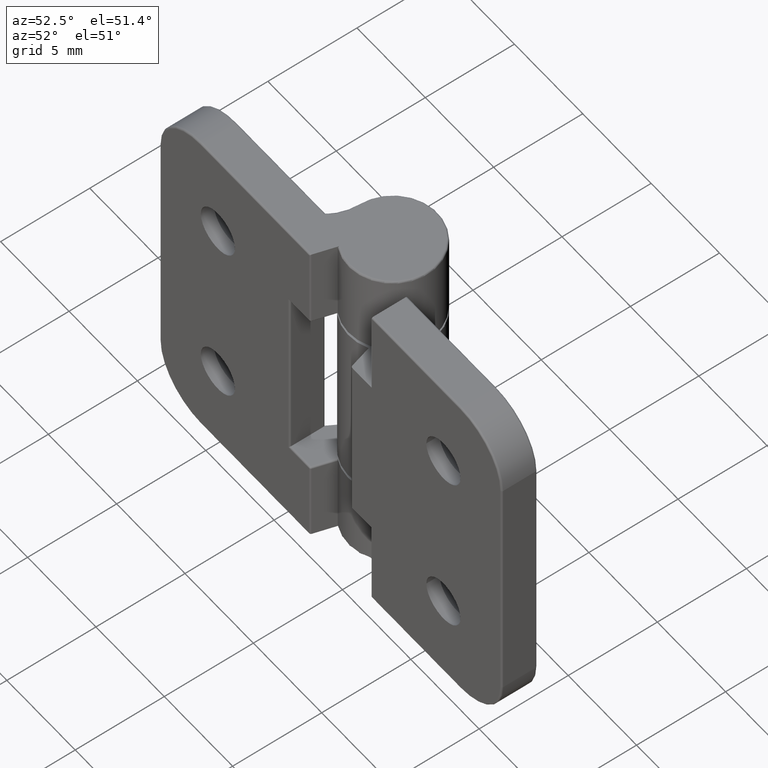
[diagram: clean part render]
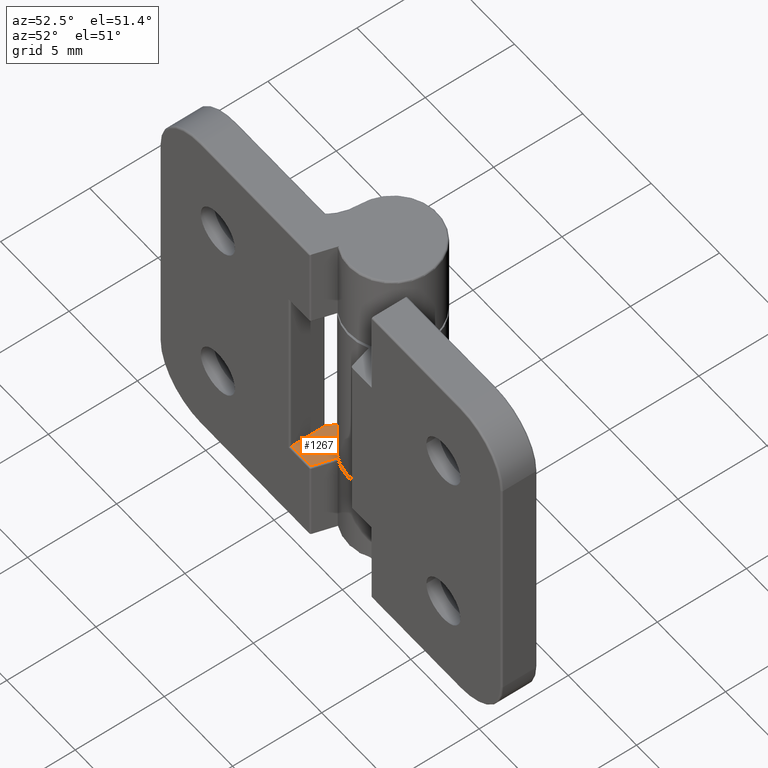
[diagram: same view with one face highlighted and labeled with its STEP entity id]
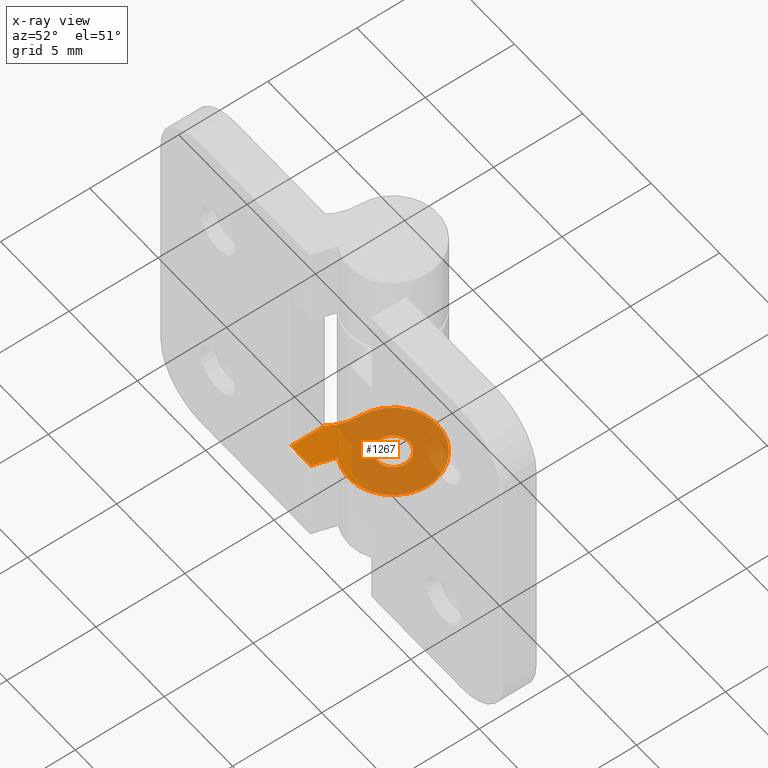
[diagram: x-ray of the same camera — body ghosted, the highlighted face saturated]
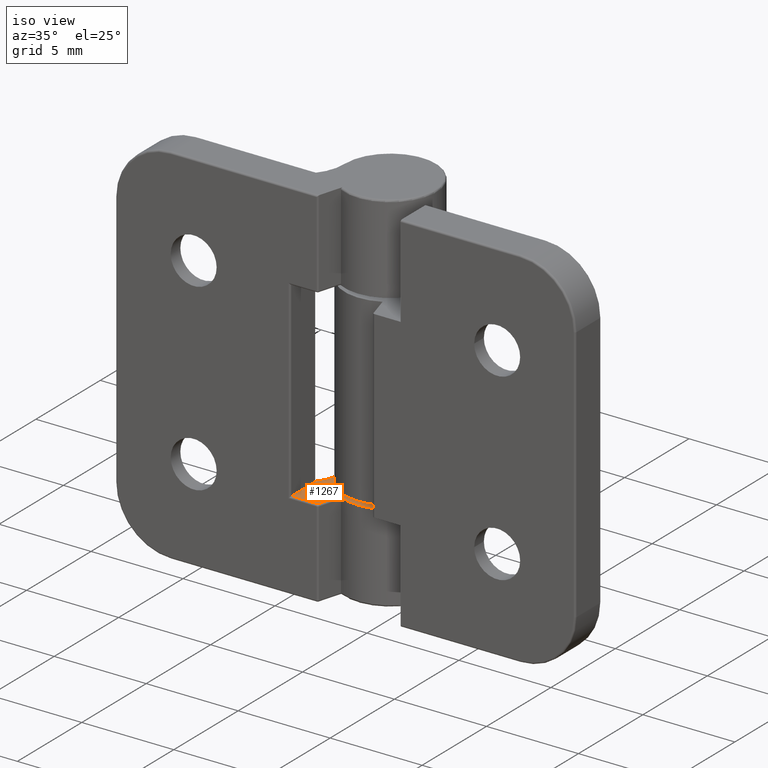
[diagram: same view with one face highlighted and labeled with its STEP entity id]
A machine part, auxiliary view. The second image highlights one B-rep face of the part: STEP entity #1267.
The next image is the same camera in x-ray: the body ghosted, the highlighted face saturated — about 77% of this face is hidden behind the body in this view.
A second angle (iso view) of the same face is appended — the face is thin or edge-on in the first view.
In plain terms, the highlighted planar face has unit normal (0, 0, -1).
Its self-contained STEP definition (entity closure, byte-faithful):
#64=FACE_BOUND('',#241,.T.);
#87=PLANE('',#1403);
#149=FACE_OUTER_BOUND('',#240,.T.);
#240=EDGE_LOOP('',(#1008,#1009,#1010,#1011,#1012,#1013));
#241=EDGE_LOOP('',(#1014));
#315=LINE('',#2053,#391);
#318=LINE('',#2057,#394);
#343=LINE('',#2211,#419);
#391=VECTOR('',#1558,1.26852713949037);
#394=VECTOR('',#1563,1.425);
#419=VECTOR('',#1714,1.8);
#457=CIRCLE('',#1315,0.1);
#501=CIRCLE('',#1404,2.5);
#502=CIRCLE('',#1405,2.49999999999999);
#503=CIRCLE('',#1406,0.9);
#545=VERTEX_POINT('',#1936);
#546=VERTEX_POINT('',#1938);
#565=VERTEX_POINT('',#2021);
#572=VERTEX_POINT('',#2037);
#574=VERTEX_POINT('',#2042);
#607=VERTEX_POINT('',#2213);
#608=VERTEX_POINT('',#2216);
#659=EDGE_CURVE('',#546,#545,#457,.T.);
#691=EDGE_CURVE('',#574,#572,#315,.T.);
#694=EDGE_CURVE('',#572,#565,#318,.T.);
#755=EDGE_CURVE('',#565,#545,#343,.T.);
#756=EDGE_CURVE('',#607,#574,#501,.T.);
#757=EDGE_CURVE('',#546,#607,#502,.T.);
#758=EDGE_CURVE('',#608,#608,#503,.T.);
#1008=ORIENTED_EDGE('',*,*,#756,.F.);
#1009=ORIENTED_EDGE('',*,*,#757,.F.);
#1010=ORIENTED_EDGE('',*,*,#659,.T.);
#1011=ORIENTED_EDGE('',*,*,#755,.F.);
#1012=ORIENTED_EDGE('',*,*,#694,.F.);
#1013=ORIENTED_EDGE('',*,*,#691,.F.);
#1014=ORIENTED_EDGE('',*,*,#758,.F.);
#1267=ADVANCED_FACE('',(#149,#64),#87,.F.);
#1315=AXIS2_PLACEMENT_3D('',#1939,#1500,#1501);
#1403=AXIS2_PLACEMENT_3D('',#2212,#1715,#1716);
#1404=AXIS2_PLACEMENT_3D('',#2214,#1717,#1718);
#1405=AXIS2_PLACEMENT_3D('',#2215,#1719,#1720);
#1406=AXIS2_PLACEMENT_3D('',#2217,#1721,#1722);
#1500=DIRECTION('center_axis',(0.,0.,-1.));
#1501=DIRECTION('ref_axis',(0.707106781186548,0.707106781186548,0.));
#1558=DIRECTION('',(-0.279999999999998,-0.96,0.));
#1563=DIRECTION('',(-1.,-5.04646829375071E-17,0.));
#1714=DIRECTION('',(0.,1.,0.));
#1715=DIRECTION('center_axis',(0.,0.,-1.));
#1716=DIRECTION('ref_axis',(-1.,0.,0.));
#1717=DIRECTION('center_axis',(0.,0.,-1.));
#1718=DIRECTION('ref_axis',(1.,0.,0.));
#1719=DIRECTION('center_axis',(0.,0.,1.));
#1720=DIRECTION('ref_axis',(-0.799999999999998,0.600000000000002,0.));
#1721=DIRECTION('center_axis',(0.,0.,1.));
#1722=DIRECTION('ref_axis',(-1.,0.,0.));
#1936=CARTESIAN_POINT('',(-3.,1.9,-5.2));
#1938=CARTESIAN_POINT('',(-3.02545111117092,1.96665180548454,-5.2));
#1939=CARTESIAN_POINT('Origin',(-3.1,1.9,-5.2));
#2021=CARTESIAN_POINT('',(-3.,0.1,-5.2));
#2037=CARTESIAN_POINT('',(-1.575,0.1,-5.2));
#2042=CARTESIAN_POINT('',(-1.2198124009427,1.31778605391075,-5.2));
#2053=CARTESIAN_POINT('',(-1.06832937667426,1.83715642283112,-5.2));
#2057=CARTESIAN_POINT('',(-3.69807878411039,0.1,-5.2));
#2211=CARTESIAN_POINT('',(-3.,2.,-5.2));
#2212=CARTESIAN_POINT('Origin',(5.10384243177922,2.,-5.2));
#2213=CARTESIAN_POINT('',(-2.5,3.5,-5.2));
#2214=CARTESIAN_POINT('Origin',(0.,3.5,-5.2));
#2215=CARTESIAN_POINT('Origin',(-4.99999999999999,3.5,-5.2));
#2216=CARTESIAN_POINT('',(0.9,3.5,-5.2));
#2217=CARTESIAN_POINT('Origin',(0.,3.5,-5.2));